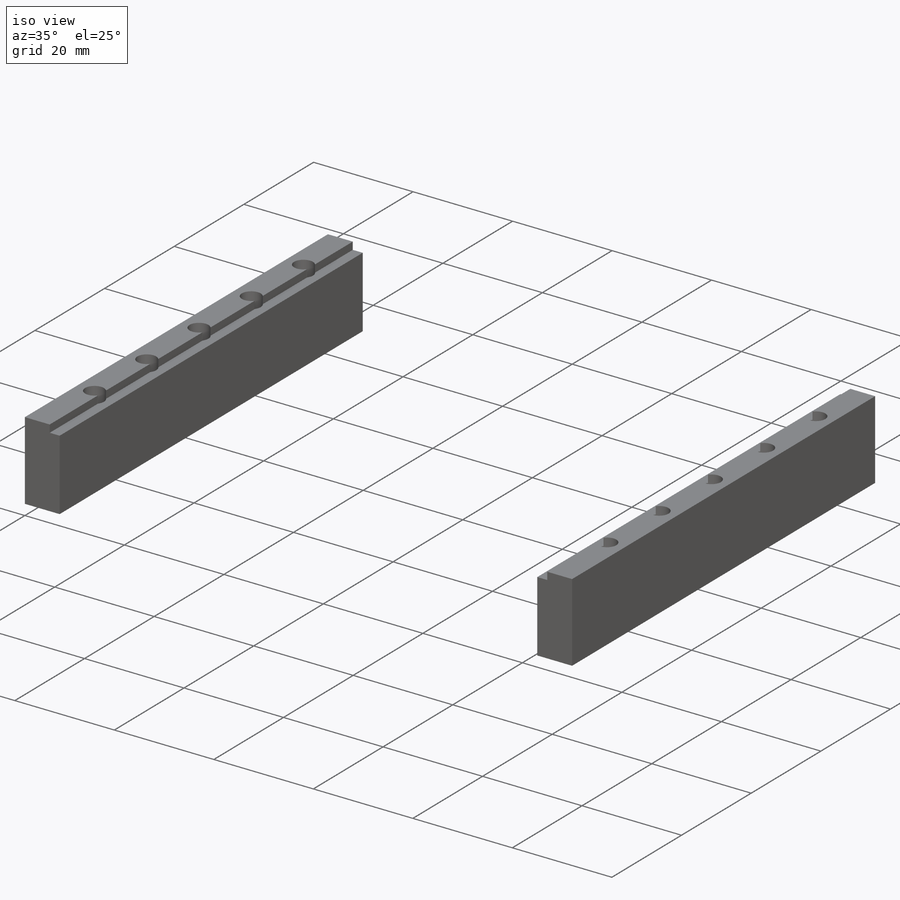
[diagram: iso view]
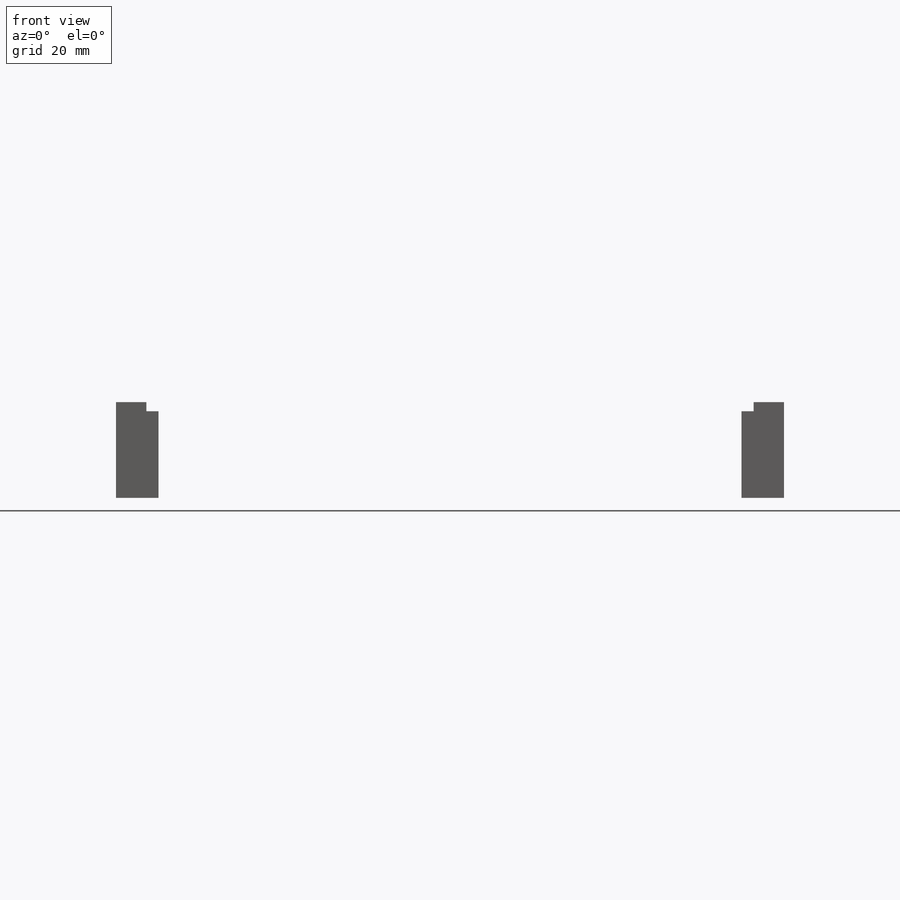
[diagram: front view]
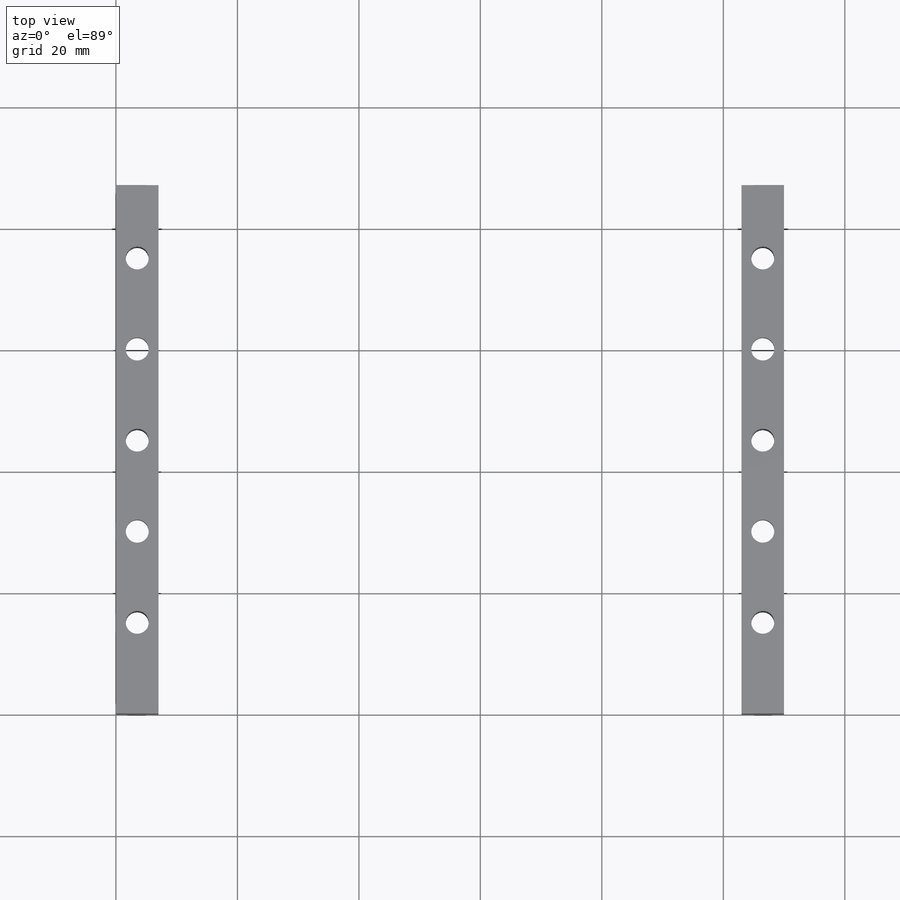
[diagram: top view]
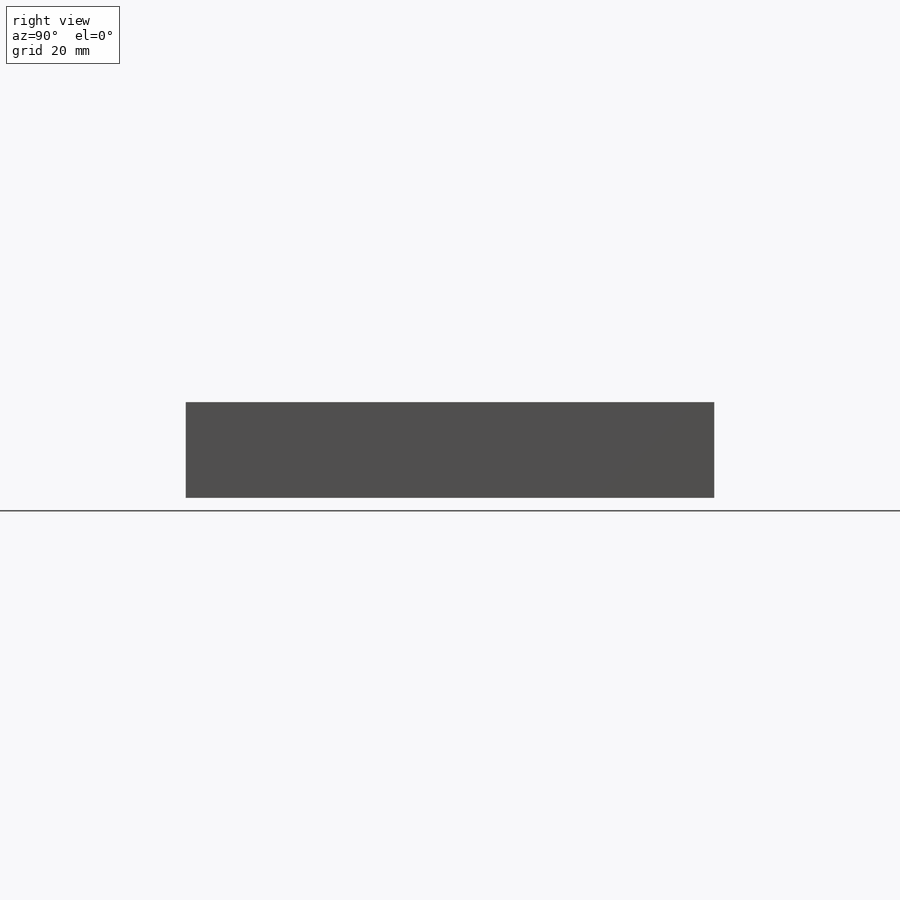
[diagram: right view]
SOLIDWORKS PART (.sldprt)
format: sldprt  version: not decoded by parser v0  size: 1,297,408 bytes
history: native  units: mm
features: sketch x7, cut_extrude x6, extrude x2, material x1, plane x1 + 1 further entry (+12 scaffold rows collapsed)
feature tree (30):
  scaffold x12  (default folders/planes/origin — collapsed)
  material  "Material <not specified>"
  "Annotations"  RD1=12.25mm RD2=8.5mm RD3=3.75mm
  sketch  "Sketch1"  dims[c1.D1=~6.743419mm c1.D2=~3.841009mm c1.D4=1.9mm c2.D1=~31.620702mm c2.D2=~26.535966mm c3.D1=90.0mm c3.D2=~8.037017mm c4.D1=6.0mm c4.D2=~171.697667mm c4.D3=~70.354796mm c5.D2=~20.475533mm c5.D4=106.0mm c5.D1=110.0mm c6.D4=110.0mm c6.D1=~30.806352mm c6.D2=5.0 c7.D1=2.0]
  extrude  "spacer-rails"  Depth=12.25mm
  sketch  "Sketch2"  dims[c1.D1=~6.874623mm c2.D1=2.0 c2.D2=2.0]
  cut_extrude  "Cut-Extrude2"  [1 undecoded]
  sketch  "Sketch3"  dims[c1.D1=1.9mm c1.D3=0.95mm c2.D1=2.0 c2.D2=3.0]
  cut_extrude  "Cut-Extrude3"  [1 undecoded]
  sketch  "Sketch4"  dims[c1.D1=6.5mm c2.D1=2.0 c2.D2=2.0]
  cut_extrude  "Cut-Extrude4"  Depth=8.5mm
  sketch  "Sketch5"  dims[c1.D1=6.5mm c2.D1=2.0 c2.D2=3.0]
  cut_extrude  "Cut-Extrude5"  Depth=3.6mm
  extrude  "NorthEast"  [1 undecoded]
  plane  "horizontal-center-of-spacers"
  sketch  "Sketch6"  dims[D1=2.0mm]
  cut_extrude  "Cut-Extrude6"  [1 undecoded]
  sketch  "Sketch7"  dims[D1=~6.179312mm]
  cut_extrude  "Cut-Extrude7"  Depth=1mm
decode coverage: 11 of 15 modeling features carry decoded parameters; 1 rows unclassified (native names shown)
note: ~ marks probable driven/reference dimensions
note: 4 parameter values undecoded
summary: no parameter record found for 4 features
note: suppression state not decoded; provenance and decode notes live in map.json
